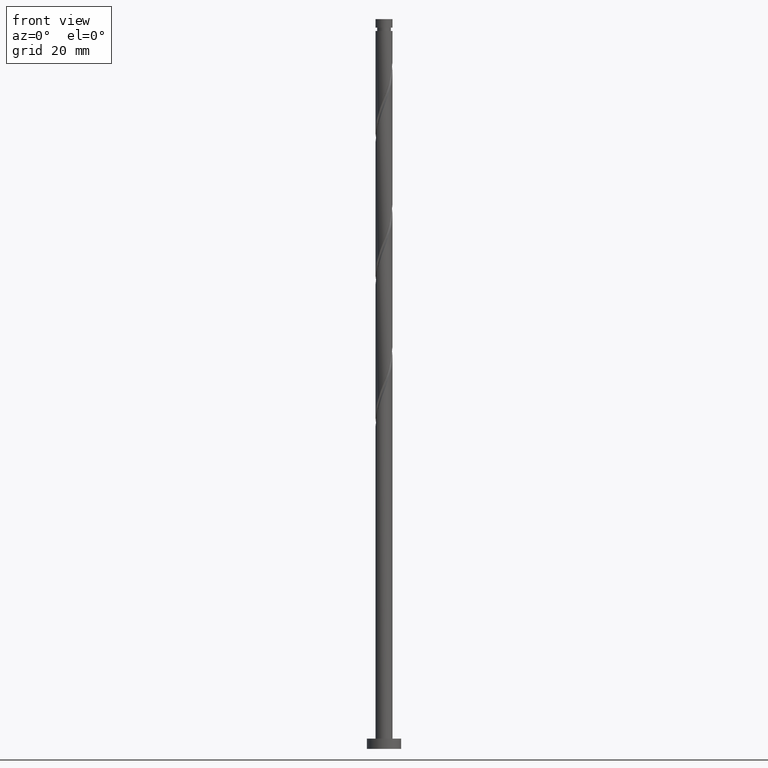
[diagram: clean part render]
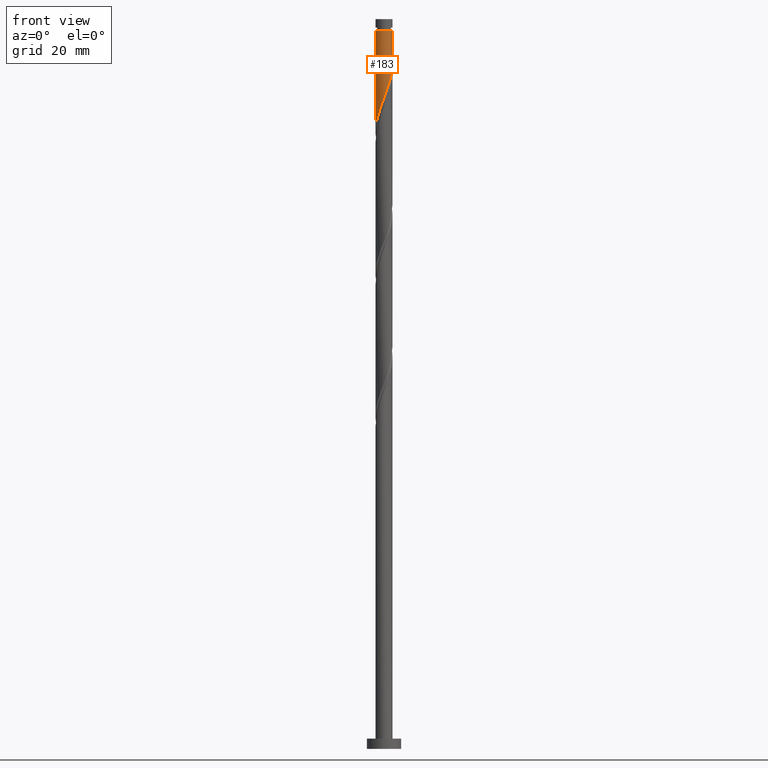
[diagram: same view with one face highlighted and labeled with its STEP entity id]
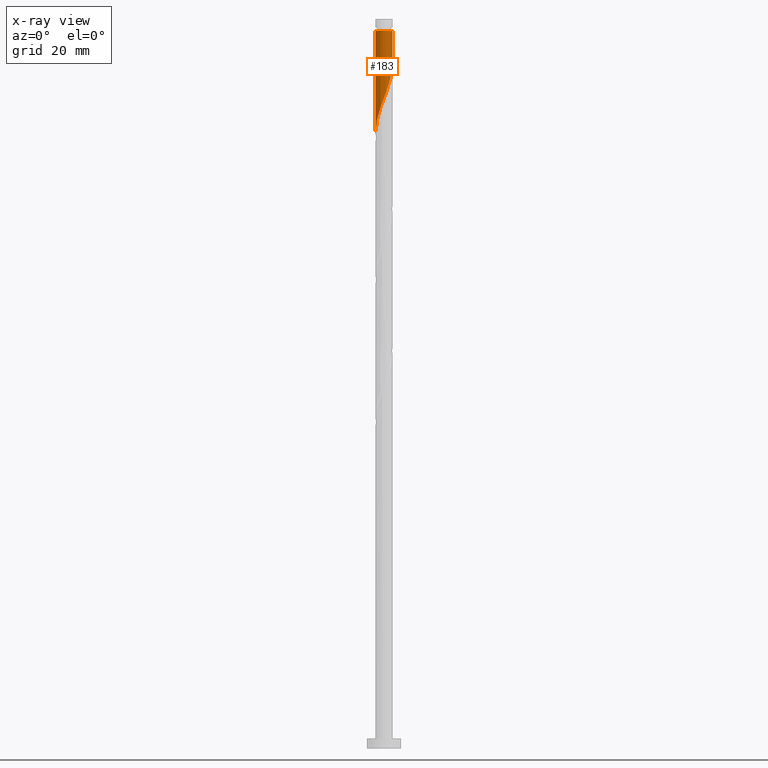
[diagram: x-ray of the same camera — body ghosted, the highlighted face saturated]
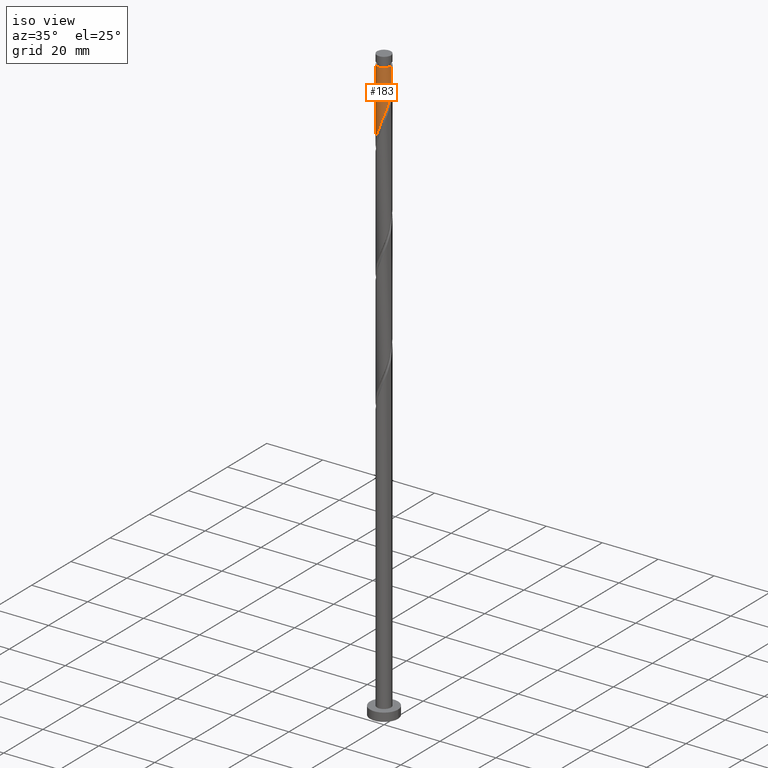
[diagram: same view with one face highlighted and labeled with its STEP entity id]
A machine part, front view. The second image highlights one B-rep face of the part: STEP entity #183.
The next image is the same camera in x-ray: the body ghosted, the highlighted face saturated — about 0% of this face is hidden behind the body in this view.
A second angle (iso view) of the same face is appended — the face is thin or edge-on in the first view.
In plain terms, the highlighted cylindrical surface (edge-blend (fillet) strip) has radius 2.5 mm, axis along (-0, -0, -1).
Its self-contained STEP definition (entity closure, byte-faithful):
#7 = CARTESIAN_POINT ( 'NONE',  ( -2.298919114669786268, -0.9823293257385166122, 183.0574635190384356 ) ) ;
#36 = CARTESIAN_POINT ( 'NONE',  ( 2.114376090707298150, -1.333946680735525359, 197.4805404421153412 ) ) ;
#40 = VECTOR ( 'NONE', #1129, 1000.000000000000000 ) ;
#72 = EDGE_CURVE ( 'NONE', #1801, #1125, #458, .T. ) ;
#83 = LINE ( 'NONE', #201, #566 ) ;
#85 = CARTESIAN_POINT ( 'NONE',  ( -2.499999999999986677, 0.000000000000000000, 210.3010532626281304 ) ) ;
#139 = CARTESIAN_POINT ( 'NONE',  ( -2.500000000000000000, 0.000000000000000000, 213.8100000000000023 ) ) ;
#150 = CARTESIAN_POINT ( 'NONE',  ( -1.814417076588191735, -1.746435307918769553, 185.4613096728845676 ) ) ;
#181 = CARTESIAN_POINT ( 'NONE',  ( 2.372170500257940073, -0.7891812958414545776, 199.0831045446794576 ) ) ;
#183 = ADVANCED_FACE ( 'NONE', ( #1538 ), #800, .T. ) ;
#201 = CARTESIAN_POINT ( 'NONE',  ( 2.500000000000000000, 3.061616997868383141E-16, 213.8100000000000023 ) ) ;
#210 = CARTESIAN_POINT ( 'NONE',  ( -2.499999999999999556, -3.193092876856696809E-15, 180.3789751385199907 ) ) ;
#261 = EDGE_CURVE ( 'NONE', #1125, #1357, #295, .T. ) ;
#285 = CARTESIAN_POINT ( 'NONE',  ( -0.2000098596587736033, -2.510406673947360279, 190.2690019805767747 ) ) ;
#295 = LINE ( 'NONE', #139, #40 ) ;
#315 = CARTESIAN_POINT ( 'NONE',  ( 2.492102982822525181, -0.1985515625903721548, 200.6856686472435456 ) ) ;
#325 = CARTESIAN_POINT ( 'NONE',  ( 0.4065817041674111287, -2.485324310909241330, 191.8715660831409195 ) ) ;
#339 = CARTESIAN_POINT ( 'NONE',  ( 2.500000000000000444, -1.241342898262791067E-15, 201.2123084718533619 ) ) ;
#411 = EDGE_LOOP ( 'NONE', ( #1380, #747, #507, #1501 ) ) ;
#427 = CARTESIAN_POINT ( 'NONE',  ( -0.7949775774478505808, -2.389593326052640077, 188.6664378780126867 ) ) ;
#432 = VERTEX_POINT ( 'NONE', #339 ) ;
#439 = CARTESIAN_POINT ( 'NONE',  ( -1.069360832754714385, -2.259749412959354498, 187.8651558267307280 ) ) ;
#458 = CIRCLE ( 'NONE', #1787, 2.499999999999986677 ) ;
#484 =( BOUNDED_CURVE ( )  B_SPLINE_CURVE ( 2, ( #1019, #1585, #315, #885, #181, #746, #36, #609, #1558, #1167, #1731, #753, #1028, #325, #893, #285, #1311, #427, #439, #994, #858, #150, #1279, #1139, #7, #582, #1704, #761, #210 ),
 .UNSPECIFIED., .F., .T. ) 
 B_SPLINE_CURVE_WITH_KNOTS ( ( 3, 2, 2, 2, 2, 2, 2, 2, 2, 2, 2, 2, 2, 2, 3 ),
 ( 0.3045271625973832164, 0.3076923076923077094, 0.3173076923076922906, 0.3269230769230769273, 0.3365384615384615641, 0.3461538461538461453, 0.3557692307692307820, 0.3653846153846153633, 0.3750000000000000000, 0.3846153846153846367, 0.3942307692307692180, 0.4038461538461538547, 0.4134615384615384359, 0.4230769230769230727, 0.4295271625973832164 ),
 .UNSPECIFIED. ) 
 CURVE ( )  GEOMETRIC_REPRESENTATION_ITEM ( )  RATIONAL_B_SPLINE_CURVE ( ( 0.9061636035682858470, 0.9069090390690744963, 0.9090909090909310430, 0.9024626128164345840, 0.9090909090909310430, 0.9024626128164345840, 0.9090909090909310430, 0.9024626128164345840, 0.9090909090909310430, 0.9024626128164345840, 0.9090909090909310430, 0.9024626128164345840, 0.9090909090909310430, 0.9024626128164345840, 0.9090909090909310430, 0.9024626128164345840, 0.9090909090909310430, 0.9024626128164345840, 0.9090909090909310430, 0.9024626128164345840, 0.9090909090909310430, 0.9024626128164345840, 0.9090909090909310430, 0.9024626128164345840, 0.9090909090909310430, 0.9024626128164345840, 0.9090909090909310430, 0.9046444828382911307, 0.9061636035682858470 ) ) 
 REPRESENTATION_ITEM ( '' )  );
#507 = ORIENTED_EDGE ( 'NONE', *, *, #261, .T. ) ;
#524 = DIRECTION ( 'NONE',  ( -0.000000000000000000, -0.000000000000000000, -1.000000000000000000 ) ) ;
#566 = VECTOR ( 'NONE', #652, 1000.000000000000000 ) ;
#582 = CARTESIAN_POINT ( 'NONE',  ( -2.418195489578342183, -0.7031900075677479656, 182.2561814677563632 ) ) ;
#609 = CARTESIAN_POINT ( 'NONE',  ( 1.952405639219638056, -1.590678418946936512, 196.6792583908332688 ) ) ;
#652 = DIRECTION ( 'NONE',  ( -0.000000000000000000, -0.000000000000000000, -1.000000000000000000 ) ) ;
#746 = CARTESIAN_POINT ( 'NONE',  ( 2.276346542194957134, -1.077214942524114427, 198.2818224933974136 ) ) ;
#747 = ORIENTED_EDGE ( 'NONE', *, *, #72, .T. ) ;
#753 = CARTESIAN_POINT ( 'NONE',  ( 0.9895442172117496771, -2.315803932707377388, 193.4741301857050928 ) ) ;
#761 = CARTESIAN_POINT ( 'NONE',  ( -2.500000000000000000, -0.2031410963426151794, 180.9186758758683311 ) ) ;
#800 = CYLINDRICAL_SURFACE ( 'NONE', #1406, 2.500000000000000000 ) ;
#858 = CARTESIAN_POINT ( 'NONE',  ( -1.579080582324884796, -1.938170403892419014, 186.2625917241665832 ) ) ;
#885 = CARTESIAN_POINT ( 'NONE',  ( 2.467994458320922568, -0.5011476491587927296, 199.8843865959614448 ) ) ;
#893 = CARTESIAN_POINT ( 'NONE',  ( 0.1032859222543187350, -2.497865492428300360, 191.0702840318589324 ) ) ;
#994 = CARTESIAN_POINT ( 'NONE',  ( -1.343744088061578079, -2.129905499866068475, 187.0638737754486556 ) ) ;
#1019 = CARTESIAN_POINT ( 'NONE',  ( 2.500000000000000444, -1.241342898262791264E-15, 201.2123084718533619 ) ) ;
#1028 = CARTESIAN_POINT ( 'NONE',  ( 0.6980629606895811801, -2.400564121808308471, 192.6728481344230204 ) ) ;
#1082 = CARTESIAN_POINT ( 'NONE',  ( 2.499999999999986677, 3.061616997868374267E-16, 210.3010532626281304 ) ) ;
#1125 = VERTEX_POINT ( 'NONE', #85 ) ;
#1129 = DIRECTION ( 'NONE',  ( -0.000000000000000000, -0.000000000000000000, -1.000000000000000000 ) ) ;
#1139 = CARTESIAN_POINT ( 'NONE',  ( -2.179642739761229464, -1.261468643909284593, 183.8587455703204512 ) ) ;
#1167 = CARTESIAN_POINT ( 'NONE',  ( 1.514998017198620817, -2.011697447541358930, 195.0766942882691524 ) ) ;
#1177 = CARTESIAN_POINT ( 'NONE',  ( -2.499999999999999556, -3.193092876856696809E-15, 180.3789751385199907 ) ) ;
#1221 = CARTESIAN_POINT ( 'NONE',  ( 0.000000000000000000, 0.000000000000000000, 210.3010532626281304 ) ) ;
#1256 = DIRECTION ( 'NONE',  ( -1.000000000000000000, 0.000000000000000000, 0.000000000000000000 ) ) ;
#1279 = CARTESIAN_POINT ( 'NONE',  ( -1.997029908174711155, -1.503951975914027184, 184.6600276216025520 ) ) ;
#1311 = CARTESIAN_POINT ( 'NONE',  ( -0.4974937185533117034, -2.450000000000000178, 189.4677199292947876 ) ) ;
#1357 = VERTEX_POINT ( 'NONE', #1177 ) ;
#1361 = CARTESIAN_POINT ( 'NONE',  ( 0.000000000000000000, 0.000000000000000000, 213.8100000000000023 ) ) ;
#1363 = EDGE_CURVE ( 'NONE', #432, #1357, #484, .T. ) ;
#1380 = ORIENTED_EDGE ( 'NONE', *, *, #1555, .F. ) ;
#1400 = DIRECTION ( 'NONE',  ( -0.000000000000000000, -0.000000000000000000, -1.000000000000000000 ) ) ;
#1406 = AXIS2_PLACEMENT_3D ( 'NONE', #1361, #524, #1650 ) ;
#1501 = ORIENTED_EDGE ( 'NONE', *, *, #1363, .F. ) ;
#1538 = FACE_OUTER_BOUND ( 'NONE', #411, .T. ) ;
#1555 = EDGE_CURVE ( 'NONE', #1801, #432, #83, .T. ) ;
#1558 = CARTESIAN_POINT ( 'NONE',  ( 1.733701828209130325, -1.801187933244147166, 195.8779763395511395 ) ) ;
#1585 = CARTESIAN_POINT ( 'NONE',  ( 2.500000000000000444, -0.09943282584192070228, 200.9481375562204164 ) ) ;
#1650 = DIRECTION ( 'NONE',  ( -1.000000000000000000, 0.000000000000000000, 0.000000000000000000 ) ) ;
#1704 = CARTESIAN_POINT ( 'NONE',  ( -2.467203498451234545, -0.4036172657728994695, 181.4548994164742624 ) ) ;
#1731 = CARTESIAN_POINT ( 'NONE',  ( 1.252271117205184803, -2.163750690124368159, 194.2754122369871084 ) ) ;
#1787 = AXIS2_PLACEMENT_3D ( 'NONE', #1221, #1400, #1256 ) ;
#1801 = VERTEX_POINT ( 'NONE', #1082 ) ;